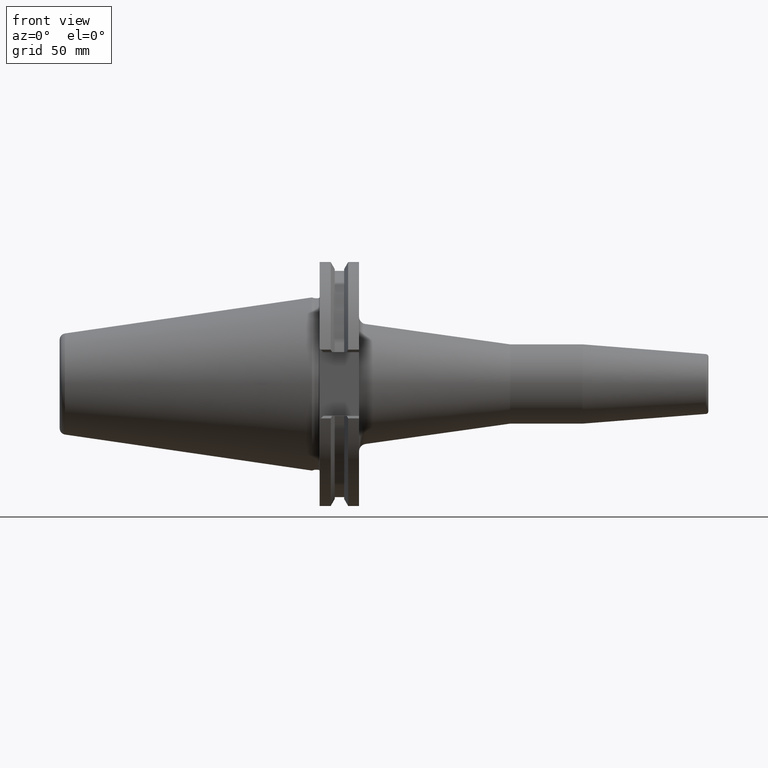
[diagram: clean part render]
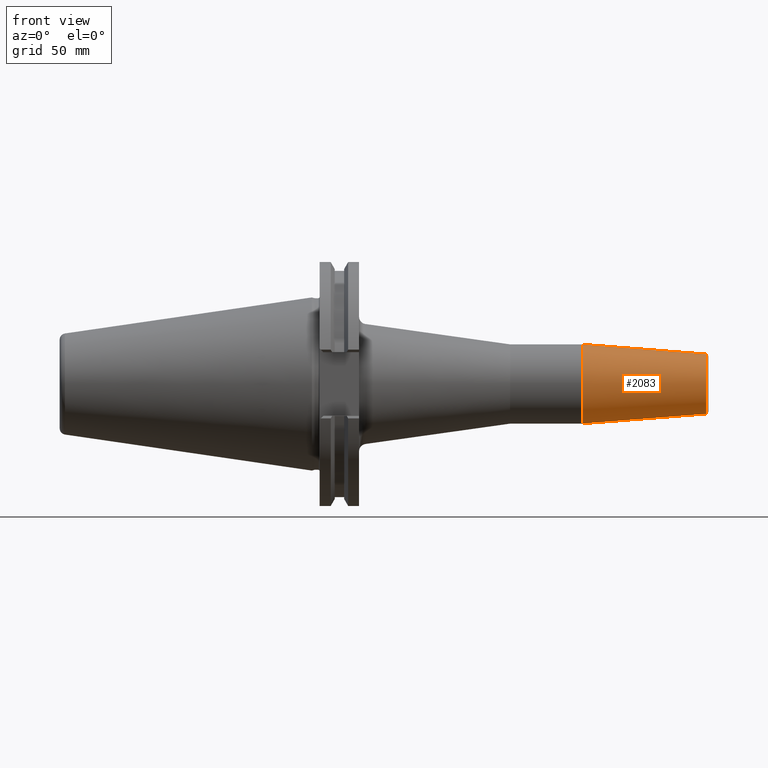
[diagram: same view with one face highlighted and labeled with its STEP entity id]
A machine part, front view. The second image highlights one B-rep face of the part: STEP entity #2083.
In plain terms, the highlighted conical surface has half-angle 4.5 deg.
Its self-contained STEP definition (entity closure, byte-faithful):
#471=DIRECTION('',(-9.969173337331E-1,0.E0,-7.845909572786E-2));
#472=VECTOR('',#471,5.005758888107E1);
#473=CARTESIAN_POINT('',(1.590784590957E2,0.E0,-1.207252684207E1));
#474=LINE('',#473,#472);
#475=DIRECTION('',(-9.969173337331E-1,0.E0,7.845909572786E-2));
#476=VECTOR('',#475,5.005758888107E1);
#477=CARTESIAN_POINT('',(1.590784590957E2,0.E0,1.207252684207E1));
#478=LINE('',#477,#476);
#479=CARTESIAN_POINT('',(1.590784590957E2,0.E0,0.E0));
#480=DIRECTION('',(-1.E0,0.E0,0.E0));
#481=DIRECTION('',(0.E0,0.E0,-1.E0));
#482=AXIS2_PLACEMENT_3D('',#479,#480,#481);
#502=CARTESIAN_POINT('',(1.091751810553E2,0.E0,0.E0));
#503=DIRECTION('',(-1.E0,0.E0,0.E0));
#504=DIRECTION('',(0.E0,0.E0,-1.E0));
#505=AXIS2_PLACEMENT_3D('',#502,#503,#504);
#1314=CARTESIAN_POINT('',(1.590784590957E2,0.E0,-1.207252684207E1));
#1316=VERTEX_POINT('',#1314);
#1317=CARTESIAN_POINT('',(1.091751810553E2,0.E0,-1.6E1));
#1318=VERTEX_POINT('',#1317);
#1344=CARTESIAN_POINT('',(1.590784590957E2,0.E0,1.207252684207E1));
#1346=VERTEX_POINT('',#1344);
#1347=CARTESIAN_POINT('',(1.091751810553E2,0.E0,1.6E1));
#1348=VERTEX_POINT('',#1347);
#2069=CARTESIAN_POINT('',(1.341268200755E2,0.E0,0.E0));
#2070=DIRECTION('',(-1.E0,0.E0,0.E0));
#2071=DIRECTION('',(0.E0,0.E0,-1.E0));
#2072=AXIS2_PLACEMENT_3D('',#2069,#2070,#2071);
#2073=CONICAL_SURFACE('',#2072,1.403626342104E1,4.500000000001E0);
#2075=ORIENTED_EDGE('',*,*,#2074,.T.);
#2077=ORIENTED_EDGE('',*,*,#2076,.T.);
#2079=ORIENTED_EDGE('',*,*,#2078,.F.);
#2080=ORIENTED_EDGE('',*,*,#2062,.F.);
#2081=EDGE_LOOP('',(#2075,#2077,#2079,#2080));
#2082=FACE_OUTER_BOUND('',#2081,.F.);
#2083=ADVANCED_FACE('',(#2082),#2073,.T.);
#483=CIRCLE('',#482,1.207252684207E1);
#506=CIRCLE('',#505,1.6E1);
#2062=EDGE_CURVE('',#1316,#1346,#483,.T.);
#2074=EDGE_CURVE('',#1316,#1318,#474,.T.);
#2076=EDGE_CURVE('',#1318,#1348,#506,.T.);
#2078=EDGE_CURVE('',#1346,#1348,#478,.T.);